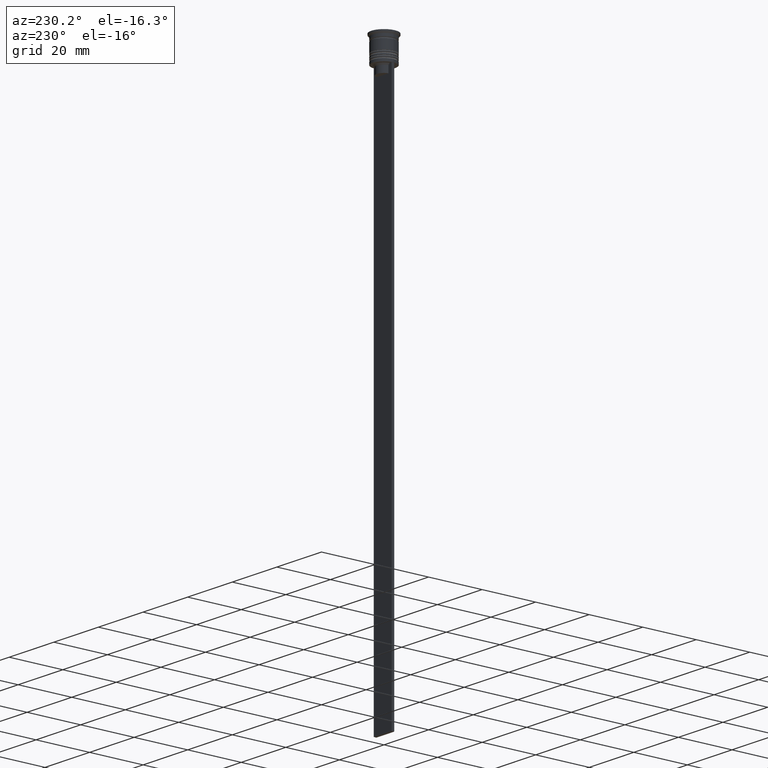
[diagram: clean part render]
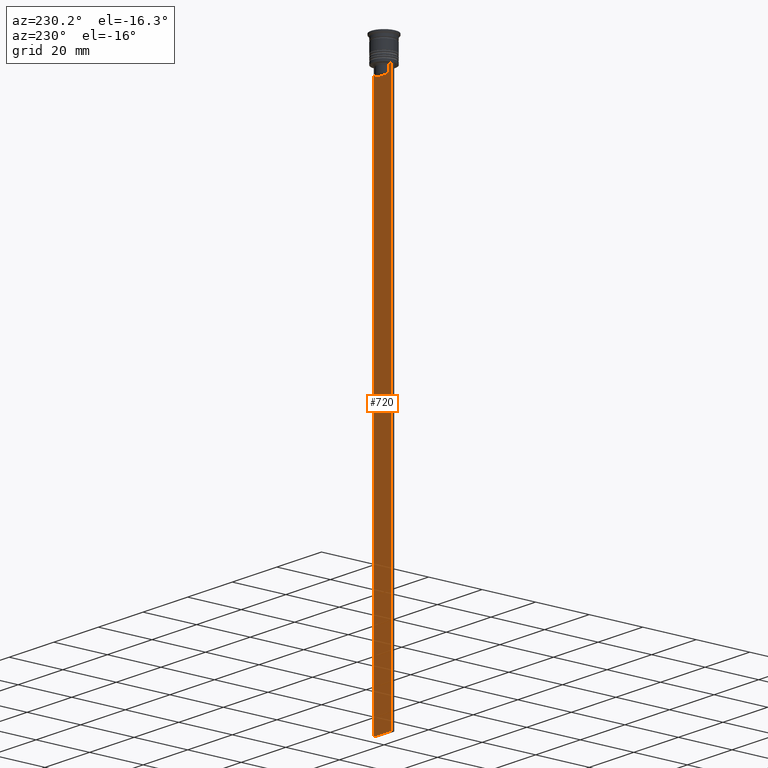
[diagram: same view with one face highlighted and labeled with its STEP entity id]
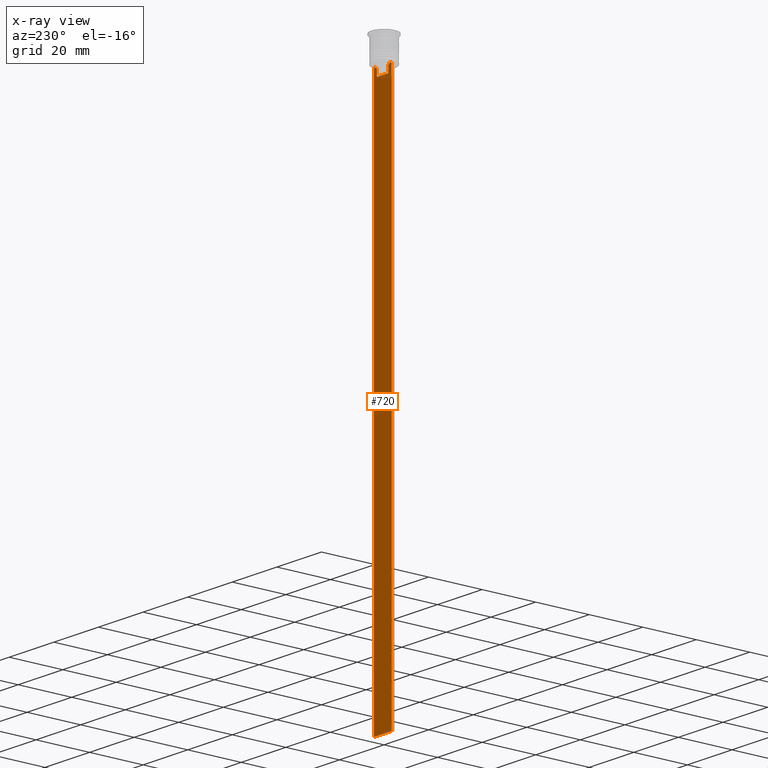
[diagram: x-ray of the same camera — body ghosted, the highlighted face saturated]
A machine part, auxiliary view. The second image highlights one B-rep face of the part: STEP entity #720.
The next image is the same camera in x-ray: the body ghosted, the highlighted face saturated — about 0% of this face is hidden behind the body in this view.
In plain terms, the highlighted planar face has unit normal (0, -1, -0).
Its self-contained STEP definition (entity closure, byte-faithful):
#18 = CARTESIAN_POINT ( 'NONE',  ( 2.602402735934617350, 0.4999999999999995559, -10.00000000000000178 ) ) ;
#94 = DIRECTION ( 'NONE',  ( 0.000000000000000000, 0.000000000000000000, -1.000000000000000000 ) ) ;
#98 = VERTEX_POINT ( 'NONE', #116 ) ;
#99 = CARTESIAN_POINT ( 'NONE',  ( 4.000000000000005329, 0.4999999999999995559, -209.5000000000000284 ) ) ;
#116 = CARTESIAN_POINT ( 'NONE',  ( 4.000000000000005329, 0.4999999999999995559, -9.500000000000000000 ) ) ;
#118 = ORIENTED_EDGE ( 'NONE', *, *, #259, .T. ) ;
#153 = LINE ( 'NONE', #703, #320 ) ;
#157 = CARTESIAN_POINT ( 'NONE',  ( -2.602402735934617350, 0.4999999999999995559, -10.00000000000000178 ) ) ;
#164 = LINE ( 'NONE', #178, #2054 ) ;
#178 = CARTESIAN_POINT ( 'NONE',  ( 0.000000000000000000, 0.4999999999999995559, -12.50000000000000000 ) ) ;
#182 = CARTESIAN_POINT ( 'NONE',  ( 4.000000000000005329, 0.4999999999999995559, -9.500000000000000000 ) ) ;
#256 = VERTEX_POINT ( 'NONE', #441 ) ;
#259 = EDGE_CURVE ( 'NONE', #360, #98, #1165, .T. ) ;
#320 = VECTOR ( 'NONE', #688, 1000.000000000000000 ) ;
#360 = VERTEX_POINT ( 'NONE', #642 ) ;
#421 = VERTEX_POINT ( 'NONE', #99 ) ;
#434 = VERTEX_POINT ( 'NONE', #1221 ) ;
#441 = CARTESIAN_POINT ( 'NONE',  ( -3.110064308016796897, 0.4999999999999995559, -9.500000000000000000 ) ) ;
#443 = CARTESIAN_POINT ( 'NONE',  ( 3.110064308016796897, 0.4999999999999995559, -9.500000000000000000 ) ) ;
#478 = DIRECTION ( 'NONE',  ( 0.000000000000000000, -1.000000000000000000, -0.000000000000000000 ) ) ;
#517 = CARTESIAN_POINT ( 'NONE',  ( 4.000000000000005329, 0.4999999999999995559, -209.5000000000000284 ) ) ;
#542 = DIRECTION ( 'NONE',  ( 0.000000000000000000, 0.000000000000000000, -1.000000000000000000 ) ) ;
#564 = CARTESIAN_POINT ( 'NONE',  ( -2.602402735934617350, 0.4999999999999995559, 0.000000000000000000 ) ) ;
#585 = VERTEX_POINT ( 'NONE', #157 ) ;
#609 = ORIENTED_EDGE ( 'NONE', *, *, #1449, .T. ) ;
#628 = VERTEX_POINT ( 'NONE', #18 ) ;
#642 = CARTESIAN_POINT ( 'NONE',  ( 3.110064308016796897, 0.4999999999999995559, -9.500000000000000000 ) ) ;
#652 = VECTOR ( 'NONE', #1830, 1000.000000000000000 ) ;
#688 = DIRECTION ( 'NONE',  ( -0.000000000000000000, -0.000000000000000000, 1.000000000000000000 ) ) ;
#703 = CARTESIAN_POINT ( 'NONE',  ( 2.602402735934617350, 0.4999999999999995559, 0.000000000000000000 ) ) ;
#720 = ADVANCED_FACE ( 'NONE', ( #835 ), #2327, .F. ) ;
#751 = DIRECTION ( 'NONE',  ( 0.000000000000000000, 0.000000000000000000, -1.000000000000000000 ) ) ;
#779 = VECTOR ( 'NONE', #780, 1000.000000000000000 ) ;
#780 = DIRECTION ( 'NONE',  ( 1.000000000000000000, 0.000000000000000000, 0.000000000000000000 ) ) ;
#835 = FACE_OUTER_BOUND ( 'NONE', #1953, .T. ) ;
#839 = VERTEX_POINT ( 'NONE', #2304 ) ;
#887 = EDGE_CURVE ( 'NONE', #2297, #256, #1427, .T. ) ;
#896 = DIRECTION ( 'NONE',  ( -1.000000000000000000, 0.000000000000000000, 0.000000000000000000 ) ) ;
#900 = EDGE_CURVE ( 'NONE', #421, #434, #2339, .T. ) ;
#943 = EDGE_CURVE ( 'NONE', #2297, #434, #2196, .T. ) ;
#994 = VERTEX_POINT ( 'NONE', #2237 ) ;
#1036 = LINE ( 'NONE', #2165, #1550 ) ;
#1090 = CARTESIAN_POINT ( 'NONE',  ( -3.999999999999994671, 0.4999999999999995559, -1.437742251701450202 ) ) ;
#1165 = LINE ( 'NONE', #1918, #779 ) ;
#1177 = CARTESIAN_POINT ( 'NONE',  ( -2.602402735934617350, 0.4999999999999995559, -10.00000000000000178 ) ) ;
#1221 = CARTESIAN_POINT ( 'NONE',  ( -3.999999999999994671, 0.4999999999999995559, -209.5000000000000284 ) ) ;
#1247 = ORIENTED_EDGE ( 'NONE', *, *, #1381, .T. ) ;
#1298 = EDGE_CURVE ( 'NONE', #994, #628, #153, .T. ) ;
#1303 = ORIENTED_EDGE ( 'NONE', *, *, #887, .T. ) ;
#1306 = CARTESIAN_POINT ( 'NONE',  ( 2.771864055700302476, 0.4999999999999995559, -9.833582414266677674 ) ) ;
#1351 = VECTOR ( 'NONE', #751, 1000.000000000000000 ) ;
#1357 = CARTESIAN_POINT ( 'NONE',  ( 2.602402735934617350, 0.4999999999999995559, -10.00000000000000178 ) ) ;
#1381 = EDGE_CURVE ( 'NONE', #98, #421, #1036, .T. ) ;
#1391 = EDGE_CURVE ( 'NONE', #839, #994, #164, .T. ) ;
#1406 = ORIENTED_EDGE ( 'NONE', *, *, #943, .F. ) ;
#1427 = LINE ( 'NONE', #182, #652 ) ;
#1449 = EDGE_CURVE ( 'NONE', #628, #360, #1939, .T. ) ;
#1550 = VECTOR ( 'NONE', #542, 1000.000000000000000 ) ;
#1557 = CARTESIAN_POINT ( 'NONE',  ( 4.000000000000005329, 0.4999999999999995559, -1.437742251701450202 ) ) ;
#1581 = ORIENTED_EDGE ( 'NONE', *, *, #1298, .T. ) ;
#1606 = CARTESIAN_POINT ( 'NONE',  ( -3.110064308016796897, 0.4999999999999995559, -9.500000000000000000 ) ) ;
#1615 = AXIS2_PLACEMENT_3D ( 'NONE', #1557, #478, #94 ) ;
#1636 = EDGE_CURVE ( 'NONE', #256, #585, #2378, .T. ) ;
#1707 = CARTESIAN_POINT ( 'NONE',  ( -3.999999999999994671, 0.4999999999999997780, -9.500000000000000000 ) ) ;
#1818 = DIRECTION ( 'NONE',  ( 0.000000000000000000, 0.000000000000000000, -1.000000000000000000 ) ) ;
#1830 = DIRECTION ( 'NONE',  ( 1.000000000000000000, 0.000000000000000000, 0.000000000000000000 ) ) ;
#1918 = CARTESIAN_POINT ( 'NONE',  ( 4.000000000000005329, 0.4999999999999995559, -9.500000000000000000 ) ) ;
#1939 = B_SPLINE_CURVE_WITH_KNOTS ( 'NONE', 3,
 ( #1357, #1306, #2385, #443 ),
 .UNSPECIFIED., .F., .F.,
 ( 4, 4 ),
 ( 0.01295151922336847637, 0.01367164596165162602 ),
 .UNSPECIFIED. ) ;
#1953 = EDGE_LOOP ( 'NONE', ( #1303, #2153, #2373, #2372, #1581, #609, #118, #1247, #2298, #1406 ) ) ;
#1972 = DIRECTION ( 'NONE',  ( 1.000000000000000000, 0.000000000000000000, 0.000000000000000000 ) ) ;
#2054 = VECTOR ( 'NONE', #1972, 1000.000000000000000 ) ;
#2151 = EDGE_CURVE ( 'NONE', #585, #839, #2228, .T. ) ;
#2153 = ORIENTED_EDGE ( 'NONE', *, *, #1636, .T. ) ;
#2165 = CARTESIAN_POINT ( 'NONE',  ( 4.000000000000005329, 0.4999999999999995559, -1.437742251701450202 ) ) ;
#2196 = LINE ( 'NONE', #1090, #2271 ) ;
#2228 = LINE ( 'NONE', #564, #1351 ) ;
#2237 = CARTESIAN_POINT ( 'NONE',  ( 2.602402735934617350, 0.4999999999999995559, -12.50000000000000000 ) ) ;
#2271 = VECTOR ( 'NONE', #1818, 1000.000000000000000 ) ;
#2297 = VERTEX_POINT ( 'NONE', #1707 ) ;
#2298 = ORIENTED_EDGE ( 'NONE', *, *, #900, .T. ) ;
#2304 = CARTESIAN_POINT ( 'NONE',  ( -2.602402735934617350, 0.4999999999999995559, -12.50000000000000000 ) ) ;
#2308 = CARTESIAN_POINT ( 'NONE',  ( -2.771866350855961780, 0.4999999999999995559, -9.833580160334840059 ) ) ;
#2311 = VECTOR ( 'NONE', #896, 1000.000000000000000 ) ;
#2327 = PLANE ( 'NONE',  #1615 ) ;
#2339 = LINE ( 'NONE', #517, #2311 ) ;
#2341 = CARTESIAN_POINT ( 'NONE',  ( -2.941047749529105193, 0.4999999999999995559, -9.666873766989334982 ) ) ;
#2372 = ORIENTED_EDGE ( 'NONE', *, *, #1391, .T. ) ;
#2373 = ORIENTED_EDGE ( 'NONE', *, *, #2151, .T. ) ;
#2378 = B_SPLINE_CURVE_WITH_KNOTS ( 'NONE', 3,
 ( #1606, #2341, #2308, #1177 ),
 .UNSPECIFIED., .F., .F.,
 ( 4, 4 ),
 ( 0.005378271293598279809, 0.006090816219555997280 ),
 .UNSPECIFIED. ) ;
#2385 = CARTESIAN_POINT ( 'NONE',  ( 2.941045828809989438, 0.4999999999999995559, -9.666875663357577864 ) ) ;